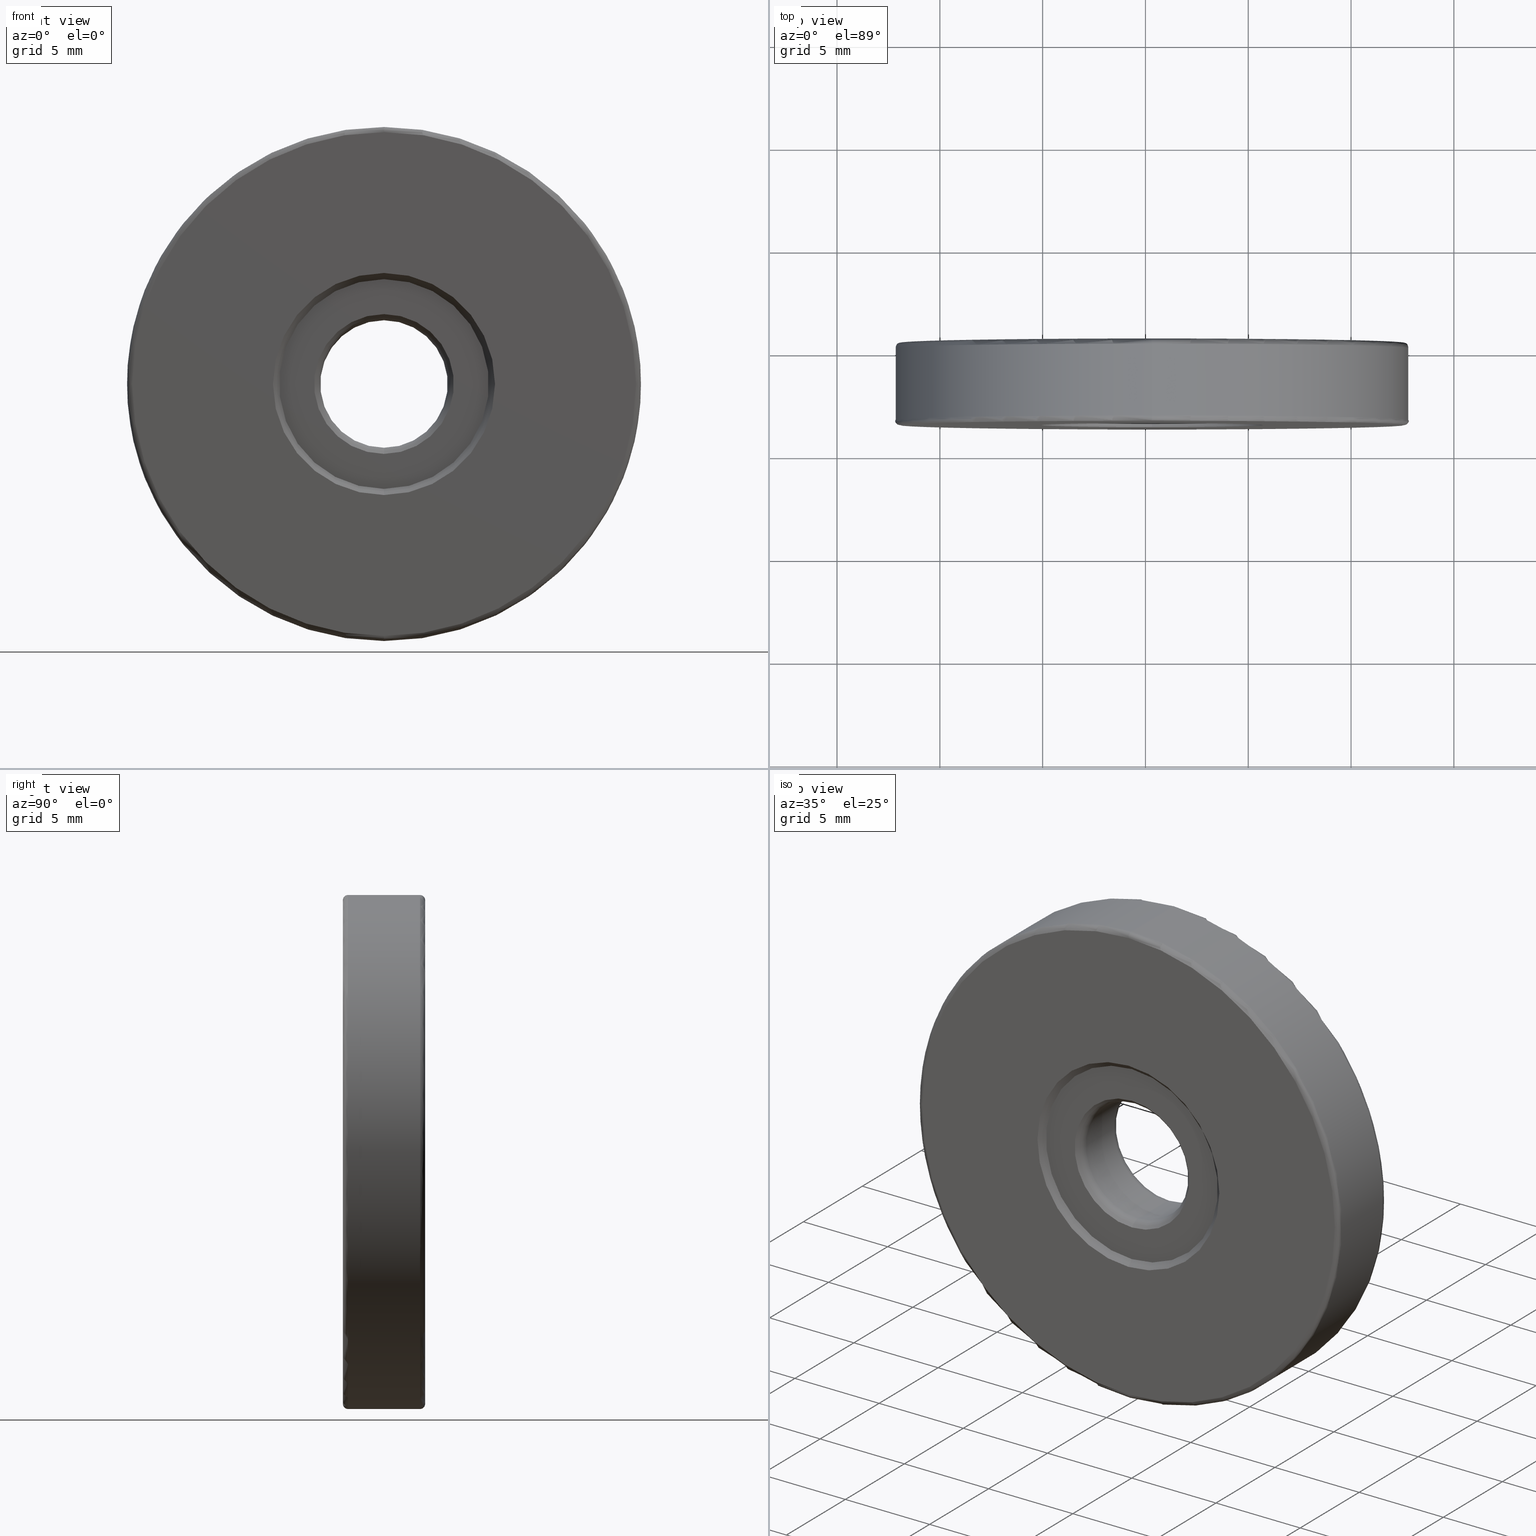
[diagram: canonical four-view strip — front | top / right | iso, engineering-drawing reading convention]
A machine part, canonical four-view strip (front | top / right | iso — engineering-drawing reading convention). The complete STEP part file that produces these views, byte-faithful:
ISO-10303-21;
HEADER;
FILE_DESCRIPTION (( 'STEP AP203' ),
    '1' );
FILE_NAME ('1.4.2.104_ZGH-25-DK4.STEP',
    '2022-04-15T03:00:10',
    ( '' ),
    ( '' ),
    'SwSTEP 2.0',
    'SolidWorks 2021',
    '' );
FILE_SCHEMA (( 'CONFIG_CONTROL_DESIGN' ));
ENDSEC;

DATA;
#1 = CIRCLE ( 'NONE', #274, 5.400000000000002132 ) ;
#2 = CIRCLE ( 'NONE', #41, 5.100000000000000533 ) ;
#3 = AXIS2_PLACEMENT_3D ( 'NONE', #402, #7, #336 ) ;
#4 = VERTEX_POINT ( 'NONE', #6 ) ;
#5 = PLANE ( 'NONE',  #410 ) ;
#6 = CARTESIAN_POINT ( 'NONE',  ( -4.682026255059964726, -3.594975976998274980, 37.25000000000000711 ) ) ;
#7 = DIRECTION ( 'NONE',  ( 0.0000000000000000000, 1.000000000000000000, 0.0000000000000000000 ) ) ;
#8 = EDGE_CURVE ( 'NONE', #578, #601, #228, .T. ) ;
#9 = CARTESIAN_POINT ( 'NONE',  ( -4.682026255059964726, 0.4050240230017252419, 25.00000000000000000 ) ) ;
#10 = FACE_OUTER_BOUND ( 'NONE', #338, .T. ) ;
#11 = ORIENTED_EDGE ( 'NONE', *, *, #70, .F. ) ;
#12 = DIRECTION ( 'NONE',  ( 0.0000000000000000000, 0.0000000000000000000, -1.000000000000000000 ) ) ;
#13 = PERSON_AND_ORGANIZATION ( #32, #595 ) ;
#14 = CARTESIAN_POINT ( 'NONE',  ( -4.682026255059964726, -0.4020827581848183119, 25.00000000000000000 ) ) ;
#15 = CARTESIAN_POINT ( 'NONE',  ( -4.682026255059964726, -3.594975976998274980, 28.10000000000000142 ) ) ;
#16 = AXIS2_PLACEMENT_3D ( 'NONE', #600, #649, #147 ) ;
#17 = EDGE_CURVE ( 'NONE', #108, #584, #293, .T. ) ;
#18 = DIRECTION ( 'NONE',  ( -1.000000000000000000, 0.0000000000000000000, 0.0000000000000000000 ) ) ;
#19 = APPROVAL_DATE_TIME ( #136, #110 ) ;
#20 = EDGE_CURVE ( 'NONE', #216, #645, #306, .T. ) ;
#21 = DIRECTION ( 'NONE',  ( 1.000000000000000000, -0.0000000000000000000, 1.224646799147353207E-16 ) ) ;
#22 = EDGE_LOOP ( 'NONE', ( #284, #236, #704, #205 ) ) ;
#23 = DIRECTION ( 'NONE',  ( 0.0000000000000000000, 0.0000000000000000000, 1.000000000000000000 ) ) ;
#24 = MECHANICAL_CONTEXT ( 'NONE', #218, 'mechanical' ) ;
#25 = ORIENTED_EDGE ( 'NONE', *, *, #378, .T. ) ;
#26 = DATE_TIME_ROLE ( 'classification_date' ) ;
#27 = AXIS2_PLACEMENT_3D ( 'NONE', #630, #421, #303 ) ;
#28 = SECURITY_CLASSIFICATION ( '', '', #181 ) ;
#29 = EDGE_LOOP ( 'NONE', ( #363, #197, #62, #273 ) ) ;
#30 = FACE_OUTER_BOUND ( 'NONE', #148, .T. ) ;
#31 = TOROIDAL_SURFACE ( 'NONE', #220, 3.600000000000000089, 0.5000000000000000000 ) ;
#32 = PERSON ( 'δָ��', 'δָ��', 'δָ��', ('δָ��'), ('δָ��'), ('δָ��') ) ;
#33 = EDGE_LOOP ( 'NONE', ( #317, #524, #183, #647 ) ) ;
#34 = ADVANCED_FACE ( 'NONE', ( #124 ), #641, .F. ) ;
#35 = CARTESIAN_POINT ( 'NONE',  ( -4.682026255059964726, 0.1550240230017252141, 37.50000000000000711 ) ) ;
#36 = ORIENTED_EDGE ( 'NONE', *, *, #144, .T. ) ;
#37 = CARTESIAN_POINT ( 'NONE',  ( -4.682026255059964726, -3.344975976998274980, 25.00000000000000000 ) ) ;
#38 = AXIS2_PLACEMENT_3D ( 'NONE', #356, #194, #23 ) ;
#39 = ORIENTED_EDGE ( 'NONE', *, *, #327, .F. ) ;
#40 = CARTESIAN_POINT ( 'NONE',  ( -4.682026255059962949, -3.344975976998274980, 12.50000000000000000 ) ) ;
#41 = AXIS2_PLACEMENT_3D ( 'NONE', #203, #251, #313 ) ;
#42 = CIRCLE ( 'NONE', #526, 5.100000000000000533 ) ;
#43 = ORIENTED_EDGE ( 'NONE', *, *, #141, .T. ) ;
#44 = CARTESIAN_POINT ( 'NONE',  ( -4.682026255059963837, -3.294975976998275158, 30.10000000000000142 ) ) ;
#45 = ORIENTED_EDGE ( 'NONE', *, *, #162, .T. ) ;
#46 = CARTESIAN_POINT ( 'NONE',  ( -4.682026255059964726, 0.4050240230017252419, 25.00000000000000000 ) ) ;
#47 = CYLINDRICAL_SURFACE ( 'NONE', #157, 3.099999999999998757 ) ;
#48 = CIRCLE ( 'NONE', #701, 3.246446609406726580 ) ;
#49 = DIRECTION ( 'NONE',  ( -0.0000000000000000000, -1.000000000000000000, -0.0000000000000000000 ) ) ;
#50 = VERTEX_POINT ( 'NONE', #674 ) ;
#51 =( LENGTH_UNIT ( ) NAMED_UNIT ( * ) SI_UNIT ( .MILLI., .METRE. ) );
#52 = VERTEX_POINT ( 'NONE', #512 ) ;
#53 = CYLINDRICAL_SURFACE ( 'NONE', #597, 12.50000000000000000 ) ;
#54 = ORIENTED_EDGE ( 'NONE', *, *, #56, .F. ) ;
#55 = DIRECTION ( 'NONE',  ( 0.0000000000000000000, 0.0000000000000000000, 1.000000000000000000 ) ) ;
#56 = EDGE_CURVE ( 'NONE', #639, #108, #620, .T. ) ;
#57 = AXIS2_PLACEMENT_3D ( 'NONE', #394, #18, #285 ) ;
#58 = CIRCLE ( 'NONE', #329, 3.399999999999996803 ) ;
#59 = PLANE ( 'NONE',  #496 ) ;
#60 = CIRCLE ( 'NONE', #152, 0.5000000000000004441 ) ;
#61 = DIRECTION ( 'NONE',  ( 0.0000000000000000000, 0.0000000000000000000, 1.000000000000000000 ) ) ;
#62 = ORIENTED_EDGE ( 'NONE', *, *, #111, .T. ) ;
#63 = FACE_OUTER_BOUND ( 'NONE', #436, .T. ) ;
#64 = DIRECTION ( 'NONE',  ( 0.0000000000000000000, 0.0000000000000000000, -1.000000000000000000 ) ) ;
#65 = ORIENTED_EDGE ( 'NONE', *, *, #706, .F. ) ;
#66 = CARTESIAN_POINT ( 'NONE',  ( -4.682026255059964726, -3.344975976998274980, 25.00000000000000000 ) ) ;
#67 = ADVANCED_FACE ( 'NONE', ( #700 ), #31, .T. ) ;
#68 = CARTESIAN_POINT ( 'NONE',  ( -4.682026255059964726, -3.294975976998275158, 28.40000000000000568 ) ) ;
#69 = DIRECTION ( 'NONE',  ( 0.0000000000000000000, 1.000000000000000000, 0.0000000000000000000 ) ) ;
#70 = EDGE_CURVE ( 'NONE', #634, #584, #85, .T. ) ;
#71 = FACE_OUTER_BOUND ( 'NONE', #92, .T. ) ;
#72 = AXIS2_PLACEMENT_3D ( 'NONE', #215, #201, #657 ) ;
#73 = CIRCLE ( 'NONE', #495, 3.399999999999996803 ) ;
#74 = APPROVAL_ROLE ( '' ) ;
#75 = EDGE_CURVE ( 'NONE', #4, #50, #596, .T. ) ;
#76 = DIRECTION ( 'NONE',  ( -0.0000000000000000000, -1.000000000000000000, -0.0000000000000000000 ) ) ;
#77 = DIRECTION ( 'NONE',  ( 0.0000000000000000000, 0.0000000000000000000, -1.000000000000000000 ) ) ;
#78 = ORIENTED_EDGE ( 'NONE', *, *, #75, .T. ) ;
#79 = DIRECTION ( 'NONE',  ( 0.0000000000000000000, 0.0000000000000000000, 1.000000000000000000 ) ) ;
#80 = PERSON_AND_ORGANIZATION_ROLE ( 'design_owner' ) ;
#81 = DIRECTION ( 'NONE',  ( 0.0000000000000000000, 1.000000000000000000, 0.0000000000000000000 ) ) ;
#82 = APPLICATION_PROTOCOL_DEFINITION ( 'international standard', 'config_control_design', 1994, #662 ) ;
#83 = VECTOR ( 'NONE', #396, 1000.000000000000000 ) ;
#84 = EDGE_LOOP ( 'NONE', ( #209, #335, #139, #513 ) ) ;
#85 = CIRCLE ( 'NONE', #527, 3.246446609406726580 ) ;
#86 = EDGE_CURVE ( 'NONE', #578, #52, #244, .T. ) ;
#87 = ORIENTED_EDGE ( 'NONE', *, *, #252, .F. ) ;
#88 = DIRECTION ( 'NONE',  ( 0.0000000000000000000, 0.0000000000000000000, 1.000000000000000000 ) ) ;
#89 = DIRECTION ( 'NONE',  ( 0.0000000000000000000, 0.0000000000000000000, 1.000000000000000000 ) ) ;
#90 = CARTESIAN_POINT ( 'NONE',  ( -4.682026255059964726, -0.04852936759154320712, 21.75355339059327520 ) ) ;
#91 = CC_DESIGN_DATE_AND_TIME_ASSIGNMENT ( #458, #186, ( #360 ) ) ;
#92 = EDGE_LOOP ( 'NONE', ( #43, #412, #95, #142 ) ) ;
#93 = DIRECTION ( 'NONE',  ( 0.0000000000000000000, 0.0000000000000000000, 1.000000000000000000 ) ) ;
#94 = AXIS2_PLACEMENT_3D ( 'NONE', #14, #450, #673 ) ;
#95 = ORIENTED_EDGE ( 'NONE', *, *, #498, .F. ) ;
#96 = CIRCLE ( 'NONE', #275, 3.400000000000003908 ) ;
#97 = DIRECTION ( 'NONE',  ( 8.659560562354957510E-17, 0.7071067811865454633, -0.7071067811865495711 ) ) ;
#98 = CIRCLE ( 'NONE', #221, 5.400000000000002132 ) ;
#99 = EDGE_LOOP ( 'NONE', ( #87, #445, #113, #65 ) ) ;
#100 = FACE_BOUND ( 'NONE', #431, .T. ) ;
#101 = DIRECTION ( 'NONE',  ( -0.0000000000000000000, -1.000000000000000000, -0.0000000000000000000 ) ) ;
#102 = EDGE_CURVE ( 'NONE', #634, #592, #483, .T. ) ;
#103 = FACE_OUTER_BOUND ( 'NONE', #717, .T. ) ;
#104 = DIRECTION ( 'NONE',  ( 0.0000000000000000000, 0.0000000000000000000, 1.000000000000000000 ) ) ;
#105 = CARTESIAN_POINT ( 'NONE',  ( -4.682026255059963837, -0.4020827581848183119, 28.60000000000000142 ) ) ;
#106 = EDGE_CURVE ( 'NONE', #711, #639, #573, .T. ) ;
#107 = CONICAL_SURFACE ( 'NONE', #16, 5.400000000000002132, 0.7853981633974439491 ) ;
#108 = VERTEX_POINT ( 'NONE', #476 ) ;
#109 = ORIENTED_EDGE ( 'NONE', *, *, #343, .T. ) ;
#110 = APPROVAL ( #449, 'δָ��' ) ;
#111 = EDGE_CURVE ( 'NONE', #604, #697, #316, .T. ) ;
#112 = FACE_OUTER_BOUND ( 'NONE', #670, .T. ) ;
#113 = ORIENTED_EDGE ( 'NONE', *, *, #622, .T. ) ;
#114 = CARTESIAN_POINT ( 'NONE',  ( -4.682026255059964726, 0.1550240230017252141, 25.00000000000000000 ) ) ;
#115 = CONICAL_SURFACE ( 'NONE', #614, 3.400000000000003908, 0.7853981633974490562 ) ;
#116 = CC_DESIGN_APPROVAL ( #295, ( #28 ) ) ;
#117 = LINE ( 'NONE', #505, #83 ) ;
#118 = CARTESIAN_POINT ( 'NONE',  ( -4.682026255059963837, 0.1050240230017253085, 19.90000000000000213 ) ) ;
#119 = ORIENTED_EDGE ( 'NONE', *, *, #585, .T. ) ;
#120 = CARTESIAN_POINT ( 'NONE',  ( -4.682026255059964726, -3.294975976998275158, 21.59999999999999787 ) ) ;
#121 = FACE_OUTER_BOUND ( 'NONE', #659, .T. ) ;
#122 = ADVANCED_FACE ( 'NONE', ( #590 ), #107, .F. ) ;
#123 = DIRECTION ( 'NONE',  ( 1.000000000000000000, -0.0000000000000000000, 1.224646799147353207E-16 ) ) ;
#124 = FACE_OUTER_BOUND ( 'NONE', #84, .T. ) ;
#125 = DIRECTION ( 'NONE',  ( 0.0000000000000000000, 0.0000000000000000000, -1.000000000000000000 ) ) ;
#126 = DIRECTION ( 'NONE',  ( 0.0000000000000000000, 0.0000000000000000000, 1.000000000000000000 ) ) ;
#127 = CARTESIAN_POINT ( 'NONE',  ( -4.682026255059964726, 0.1050240230017322474, 30.10000000000000142 ) ) ;
#128 = VERTEX_POINT ( 'NONE', #40 ) ;
#129 = CIRCLE ( 'NONE', #369, 3.099999999999998757 ) ;
#130 = DATE_AND_TIME ( #625, #428 ) ;
#131 = APPROVAL_PERSON_ORGANIZATION ( #13, #110, #570 ) ;
#132 = DIRECTION ( 'NONE',  ( 0.0000000000000000000, 0.0000000000000000000, 1.000000000000000000 ) ) ;
#133 = AXIS2_PLACEMENT_3D ( 'NONE', #405, #21, #502 ) ;
#134 = CONICAL_SURFACE ( 'NONE', #3, 5.100000000000000533, 0.7853981633974526089 ) ;
#135 = DIRECTION ( 'NONE',  ( 0.0000000000000000000, 0.0000000000000000000, 1.000000000000000000 ) ) ;
#136 = DATE_AND_TIME ( #516, #699 ) ;
#137 = ADVANCED_FACE ( 'NONE', ( #103 ), #515, .T. ) ;
#138 = COORDINATED_UNIVERSAL_TIME_OFFSET ( 8, 0, .AHEAD. ) ;
#139 = ORIENTED_EDGE ( 'NONE', *, *, #20, .F. ) ;
#140 = OPEN_SHELL ( 'NONE', ( #467, #658, #34, #286, #403, #231, #311, #191, #122, #425, #137, #591, #602, #213, #442, #67, #161, #249, #159, #682, #370, #599, #155, #479 ) ) ;
#141 = EDGE_CURVE ( 'NONE', #584, #634, #48, .T. ) ;
#142 = ORIENTED_EDGE ( 'NONE', *, *, #653, .F. ) ;
#143 = DIRECTION ( 'NONE',  ( 0.0000000000000000000, 1.000000000000000000, 0.0000000000000000000 ) ) ;
#144 = EDGE_CURVE ( 'NONE', #227, #250, #2, .T. ) ;
#145 = DIRECTION ( 'NONE',  ( 0.0000000000000000000, 1.000000000000000000, 0.0000000000000000000 ) ) ;
#146 = ORIENTED_EDGE ( 'NONE', *, *, #588, .F. ) ;
#147 = DIRECTION ( 'NONE',  ( 0.0000000000000000000, 0.0000000000000000000, -1.000000000000000000 ) ) ;
#148 = EDGE_LOOP ( 'NONE', ( #165, #541 ) ) ;
#149 = VECTOR ( 'NONE', #433, 1000.000000000000000 ) ;
#150 = CARTESIAN_POINT ( 'NONE',  ( -4.682026255059964726, -3.594975976998274980, 25.00000000000000000 ) ) ;
#151 = AXIS2_PLACEMENT_3D ( 'NONE', #571, #397, #132 ) ;
#152 = AXIS2_PLACEMENT_3D ( 'NONE', #529, #461, #79 ) ;
#153 = ORIENTED_EDGE ( 'NONE', *, *, #20, .T. ) ;
#154 = DIRECTION ( 'NONE',  ( -1.000000000000000000, 0.0000000000000000000, 0.0000000000000000000 ) ) ;
#155 = ADVANCED_FACE ( 'NONE', ( #487 ), #362, .T. ) ;
#156 = ORIENTED_EDGE ( 'NONE', *, *, #270, .T. ) ;
#157 = AXIS2_PLACEMENT_3D ( 'NONE', #150, #593, #375 ) ;
#158 = AXIS2_PLACEMENT_3D ( 'NONE', #459, #387, #558 ) ;
#159 = ADVANCED_FACE ( 'NONE', ( #430 ), #710, .F. ) ;
#160 = VERTEX_POINT ( 'NONE', #544 ) ;
#161 = ADVANCED_FACE ( 'NONE', ( #702 ), #47, .F. ) ;
#162 = EDGE_CURVE ( 'NONE', #604, #50, #164, .T. ) ;
#163 = DIRECTION ( 'NONE',  ( 0.0000000000000000000, 1.000000000000000000, 0.0000000000000000000 ) ) ;
#164 = LINE ( 'NONE', #320, #671 ) ;
#165 = ORIENTED_EDGE ( 'NONE', *, *, #327, .T. ) ;
#166 = DIRECTION ( 'NONE',  ( -0.0000000000000000000, -1.000000000000000000, -0.0000000000000000000 ) ) ;
#167 = DIRECTION ( 'NONE',  ( 0.0000000000000000000, -0.0000000000000000000, 1.000000000000000000 ) ) ;
#168 = LINE ( 'NONE', #563, #560 ) ;
#169 = ORIENTED_EDGE ( 'NONE', *, *, #577, .T. ) ;
#170 = DIRECTION ( 'NONE',  ( 0.0000000000000000000, 1.000000000000000000, 0.0000000000000000000 ) ) ;
#171 = CC_DESIGN_SECURITY_CLASSIFICATION ( #28, ( #557 ) ) ;
#172 = DIRECTION ( 'NONE',  ( 0.0000000000000000000, 0.0000000000000000000, -1.000000000000000000 ) ) ;
#173 = DIRECTION ( 'NONE',  ( 8.659560562354969836E-17, 0.7071067811865444641, -0.7071067811865505703 ) ) ;
#174 = ORIENTED_EDGE ( 'NONE', *, *, #17, .F. ) ;
#175 = CARTESIAN_POINT ( 'NONE',  ( -4.682026255059964726, 0.4050240230017252419, 25.00000000000000000 ) ) ;
#176 = APPROVAL_DATE_TIME ( #528, #225 ) ;
#177 = CARTESIAN_POINT ( 'NONE',  ( -4.682026255059964726, -0.4020827581848183119, 25.00000000000000000 ) ) ;
#178 = CARTESIAN_POINT ( 'NONE',  ( -4.682026255059964726, 0.1050240230017322474, 25.00000000000000000 ) ) ;
#179 = LINE ( 'NONE', #127, #535 ) ;
#180 = VERTEX_POINT ( 'NONE', #44 ) ;
#181 = SECURITY_CLASSIFICATION_LEVEL ( 'unclassified' ) ;
#182 = DIRECTION ( 'NONE',  ( -0.0000000000000000000, -1.000000000000000000, -0.0000000000000000000 ) ) ;
#183 = ORIENTED_EDGE ( 'NONE', *, *, #8, .T. ) ;
#184 = CARTESIAN_POINT ( 'NONE',  ( -4.682026255059964726, -2.787869195811723877, 25.00000000000000000 ) ) ;
#185 = TOROIDAL_SURFACE ( 'NONE', #374, 3.600000000000000089, 0.5000000000000000000 ) ;
#186 = DATE_TIME_ROLE ( 'creation_date' ) ;
#187 = AXIS2_PLACEMENT_3D ( 'NONE', #562, #278, #714 ) ;
#188 = AXIS2_PLACEMENT_3D ( 'NONE', #666, #182, #517 ) ;
#189 = CIRCLE ( 'NONE', #57, 0.5000000000000004441 ) ;
#190 = ORIENTED_EDGE ( 'NONE', *, *, #498, .T. ) ;
#191 = ADVANCED_FACE ( 'NONE', ( #587 ), #477, .F. ) ;
#192 = CARTESIAN_POINT ( 'NONE',  ( -4.682026255059962949, -3.594975976998274980, 12.75000000000000178 ) ) ;
#193 = ORIENTED_EDGE ( 'NONE', *, *, #238, .T. ) ;
#194 = DIRECTION ( 'NONE',  ( -0.0000000000000000000, -1.000000000000000000, -0.0000000000000000000 ) ) ;
#195 = APPROVAL_DATE_TIME ( #695, #295 ) ;
#196 = AXIS2_PLACEMENT_3D ( 'NONE', #9, #49, #501 ) ;
#197 = ORIENTED_EDGE ( 'NONE', *, *, #551, .F. ) ;
#198 = DIRECTION ( 'NONE',  ( 0.0000000000000000000, 1.000000000000000000, 0.0000000000000000000 ) ) ;
#199 = AXIS2_PLACEMENT_3D ( 'NONE', #451, #346, #568 ) ;
#200 = EDGE_CURVE ( 'NONE', #497, #663, #437, .T. ) ;
#201 = DIRECTION ( 'NONE',  ( 0.0000000000000000000, 1.000000000000000000, 0.0000000000000000000 ) ) ;
#202 = ORIENTED_EDGE ( 'NONE', *, *, #323, .F. ) ;
#203 = CARTESIAN_POINT ( 'NONE',  ( -4.682026255059964726, 0.1050240230017253085, 25.00000000000000000 ) ) ;
#204 = CARTESIAN_POINT ( 'NONE',  ( -4.682026255059964726, 0.1050240230017253085, 25.00000000000000000 ) ) ;
#205 = ORIENTED_EDGE ( 'NONE', *, *, #111, .F. ) ;
#206 = CARTESIAN_POINT ( 'NONE',  ( -4.682026255059964726, -2.787869195811723877, 25.00000000000000000 ) ) ;
#207 = DIRECTION ( 'NONE',  ( -0.0000000000000000000, 1.000000000000000000, -0.0000000000000000000 ) ) ;
#208 = AXIS2_PLACEMENT_3D ( 'NONE', #184, #635, #135 ) ;
#209 = ORIENTED_EDGE ( 'NONE', *, *, #144, .F. ) ;
#210 = CC_DESIGN_APPROVAL ( #110, ( #557 ) ) ;
#211 = DIRECTION ( 'NONE',  ( 0.0000000000000000000, 1.000000000000000000, 0.0000000000000000000 ) ) ;
#212 = CONICAL_SURFACE ( 'NONE', #618, 3.099999999999998757, 0.7853981633974511656 ) ;
#213 = ADVANCED_FACE ( 'NONE', ( #624, #112 ), #5, .T. ) ;
#214 = ORIENTED_EDGE ( 'NONE', *, *, #569, .F. ) ;
#215 = CARTESIAN_POINT ( 'NONE',  ( -4.682026255059964726, -0.1949759769982698510, 25.00000000000000000 ) ) ;
#216 = VERTEX_POINT ( 'NONE', #507 ) ;
#217 = ORIENTED_EDGE ( 'NONE', *, *, #581, .T. ) ;
#218 = APPLICATION_CONTEXT ( 'configuration controlled 3d designs of mechanical parts and assemblies' ) ;
#219 = AXIS2_PLACEMENT_3D ( 'NONE', #309, #245, #531 ) ;
#220 = AXIS2_PLACEMENT_3D ( 'NONE', #206, #143, #259 ) ;
#221 = AXIS2_PLACEMENT_3D ( 'NONE', #272, #198, #586 ) ;
#222 = ORIENTED_EDGE ( 'NONE', *, *, #365, .T. ) ;
#223 = DIRECTION ( 'NONE',  ( 0.0000000000000000000, 1.000000000000000000, 0.0000000000000000000 ) ) ;
#224 = CARTESIAN_POINT ( 'NONE',  ( -4.682026255059963837, 0.4050240230017252419, 19.60000000000000497 ) ) ;
#225 = APPROVAL ( #519, 'δָ��' ) ;
#226 = CARTESIAN_POINT ( 'NONE',  ( -4.682026255059964726, -3.294975976998275158, 25.00000000000000000 ) ) ;
#227 = VERTEX_POINT ( 'NONE', #118 ) ;
#228 = LINE ( 'NONE', #447, #607 ) ;
#229 = CARTESIAN_POINT ( 'NONE',  ( -4.682026255059964726, -3.294975976998275158, 25.00000000000000000 ) ) ;
#230 = AXIS2_PLACEMENT_3D ( 'NONE', #705, #154, #93 ) ;
#231 = ADVANCED_FACE ( 'NONE', ( #10 ), #444, .F. ) ;
#232 = CARTESIAN_POINT ( 'NONE',  ( -4.682026255059964726, -0.4020827581848183119, 21.90000000000000213 ) ) ;
#233 = DIRECTION ( 'NONE',  ( -0.0000000000000000000, 1.000000000000000000, -0.0000000000000000000 ) ) ;
#234 = PERSON_AND_ORGANIZATION_ROLE ( 'creator' ) ;
#235 = DIRECTION ( 'NONE',  ( 8.659560562354895880E-17, -0.7071067811865505703, 0.7071067811865444641 ) ) ;
#236 = ORIENTED_EDGE ( 'NONE', *, *, #200, .T. ) ;
#237 = DIRECTION ( 'NONE',  ( 0.0000000000000000000, 1.000000000000000000, 0.0000000000000000000 ) ) ;
#238 = EDGE_CURVE ( 'NONE', #180, #553, #341, .T. ) ;
#239 = CALENDAR_DATE ( 2022, 15, 4 ) ;
#240 = FACE_OUTER_BOUND ( 'NONE', #687, .T. ) ;
#241 = DIRECTION ( 'NONE',  ( 0.0000000000000000000, 0.0000000000000000000, 1.000000000000000000 ) ) ;
#242 = APPROVAL_STATUS ( 'not_yet_approved' ) ;
#243 =( GEOMETRIC_REPRESENTATION_CONTEXT ( 3 ) GLOBAL_UNCERTAINTY_ASSIGNED_CONTEXT ( ( #552 ) ) GLOBAL_UNIT_ASSIGNED_CONTEXT ( ( #51, #638, #415 ) ) REPRESENTATION_CONTEXT ( 'NONE', 'WORKASPACE' ) );
#244 = CIRCLE ( 'NONE', #372, 3.246446609406726580 ) ;
#245 = DIRECTION ( 'NONE',  ( -0.0000000000000000000, 1.000000000000000000, -0.0000000000000000000 ) ) ;
#246 = CALENDAR_DATE ( 2022, 15, 4 ) ;
#247 = VERTEX_POINT ( 'NONE', #68 ) ;
#248 = DIRECTION ( 'NONE',  ( 0.0000000000000000000, -0.7071067811865505703, -0.7071067811865444641 ) ) ;
#249 = ADVANCED_FACE ( 'NONE', ( #679 ), #536, .T. ) ;
#250 = VERTEX_POINT ( 'NONE', #355 ) ;
#251 = DIRECTION ( 'NONE',  ( 0.0000000000000000000, 1.000000000000000000, 0.0000000000000000000 ) ) ;
#252 = EDGE_CURVE ( 'NONE', #227, #645, #350, .T. ) ;
#253 = AXIS2_PLACEMENT_3D ( 'NONE', #310, #532, #422 ) ;
#254 = ORIENTED_EDGE ( 'NONE', *, *, #471, .T. ) ;
#255 = PLANE ( 'NONE',  #351 ) ;
#256 = CIRCLE ( 'NONE', #466, 12.50000000000000355 ) ;
#257 = DIRECTION ( 'NONE',  ( -0.0000000000000000000, -1.000000000000000000, -0.0000000000000000000 ) ) ;
#258 = ORIENTED_EDGE ( 'NONE', *, *, #106, .T. ) ;
#259 = DIRECTION ( 'NONE',  ( 0.0000000000000000000, 0.0000000000000000000, 1.000000000000000000 ) ) ;
#260 = EDGE_CURVE ( 'NONE', #663, #697, #689, .T. ) ;
#261 = DIRECTION ( 'NONE',  ( 0.0000000000000000000, 1.000000000000000000, 0.0000000000000000000 ) ) ;
#262 = CARTESIAN_POINT ( 'NONE',  ( -4.682026255059964726, -3.141422586404997830, 25.00000000000000000 ) ) ;
#263 = EDGE_CURVE ( 'NONE', #52, #247, #168, .T. ) ;
#264 = LOCAL_TIME ( 11, 0, 10.00000000000000000, #138 ) ;
#265 = EDGE_LOOP ( 'NONE', ( #636, #379 ) ) ;
#266 = CARTESIAN_POINT ( 'NONE',  ( -4.682026255059964726, -0.04852936759154320712, 25.00000000000000000 ) ) ;
#267 = AXIS2_PLACEMENT_3D ( 'NONE', #37, #211, #89 ) ;
#268 = CARTESIAN_POINT ( 'NONE',  ( -4.682026255059964726, 0.1050240230017253085, 25.00000000000000000 ) ) ;
#269 = ORIENTED_EDGE ( 'NONE', *, *, #585, .F. ) ;
#270 = EDGE_CURVE ( 'NONE', #497, #128, #619, .T. ) ;
#271 = EDGE_LOOP ( 'NONE', ( #214, #493, #146, #530 ) ) ;
#272 = CARTESIAN_POINT ( 'NONE',  ( -4.682026255059964726, -3.594975976998274980, 25.00000000000000000 ) ) ;
#273 = ORIENTED_EDGE ( 'NONE', *, *, #260, .F. ) ;
#274 = AXIS2_PLACEMENT_3D ( 'NONE', #419, #145, #481 ) ;
#275 = AXIS2_PLACEMENT_3D ( 'NONE', #642, #207, #328 ) ;
#276 = VECTOR ( 'NONE', #173, 1000.000000000000000 ) ;
#277 = CIRCLE ( 'NONE', #219, 3.400000000000003908 ) ;
#278 = DIRECTION ( 'NONE',  ( 0.0000000000000000000, 1.000000000000000000, 0.0000000000000000000 ) ) ;
#279 = CARTESIAN_POINT ( 'NONE',  ( -4.682026255059963837, -2.787869195811723877, 21.40000000000000213 ) ) ;
#280 = VERTEX_POINT ( 'NONE', #232 ) ;
#281 = DIRECTION ( 'NONE',  ( -0.0000000000000000000, -1.000000000000000000, -0.0000000000000000000 ) ) ;
#282 = DIRECTION ( 'NONE',  ( 0.0000000000000000000, 0.0000000000000000000, 1.000000000000000000 ) ) ;
#283 = CARTESIAN_POINT ( 'NONE',  ( -4.682026255059964726, -3.594975976998274980, 25.00000000000000000 ) ) ;
#284 = ORIENTED_EDGE ( 'NONE', *, *, #457, .F. ) ;
#285 = DIRECTION ( 'NONE',  ( 0.0000000000000000000, 0.0000000000000000000, 1.000000000000000000 ) ) ;
#286 = ADVANCED_FACE ( 'NONE', ( #71 ), #212, .F. ) ;
#287 = PERSON_AND_ORGANIZATION ( #32, #595 ) ;
#288 = DIRECTION ( 'NONE',  ( 0.0000000000000000000, -1.000000000000000000, 0.0000000000000000000 ) ) ;
#289 = DIRECTION ( 'NONE',  ( 0.0000000000000000000, 0.0000000000000000000, 1.000000000000000000 ) ) ;
#290 = CIRCLE ( 'NONE', #640, 0.2500000000000002220 ) ;
#291 = AXIS2_PLACEMENT_3D ( 'NONE', #426, #257, #542 ) ;
#292 = COORDINATED_UNIVERSAL_TIME_OFFSET ( 8, 0, .AHEAD. ) ;
#293 = CIRCLE ( 'NONE', #546, 0.5000000000000004441 ) ;
#294 = CARTESIAN_POINT ( 'NONE',  ( -4.682026255059964726, -3.594975976998274980, 25.00000000000000000 ) ) ;
#295 = APPROVAL ( #242, 'δָ��' ) ;
#296 = ORIENTED_EDGE ( 'NONE', *, *, #260, .T. ) ;
#297 = CARTESIAN_POINT ( 'NONE',  ( -4.682026255059964726, -3.594975976998274980, 25.00000000000000000 ) ) ;
#298 = COORDINATED_UNIVERSAL_TIME_OFFSET ( 8, 0, .AHEAD. ) ;
#299 = DIRECTION ( 'NONE',  ( 0.0000000000000000000, 1.000000000000000000, 0.0000000000000000000 ) ) ;
#300 = ORIENTED_EDGE ( 'NONE', *, *, #343, .F. ) ;
#301 = CARTESIAN_POINT ( 'NONE',  ( -4.682026255059963837, -0.04852936759154320712, 28.24644660940672836 ) ) ;
#302 = ORIENTED_EDGE ( 'NONE', *, *, #17, .T. ) ;
#303 = DIRECTION ( 'NONE',  ( 0.0000000000000000000, 0.0000000000000000000, -1.000000000000000000 ) ) ;
#304 = CIRCLE ( 'NONE', #690, 5.100000000000000533 ) ;
#305 = PERSON_AND_ORGANIZATION ( #32, #595 ) ;
#306 = CIRCLE ( 'NONE', #199, 5.399999999999995026 ) ;
#307 = EDGE_LOOP ( 'NONE', ( #388, #193, #376, #589 ) ) ;
#308 = ORIENTED_EDGE ( 'NONE', *, *, #581, .F. ) ;
#309 = CARTESIAN_POINT ( 'NONE',  ( -4.682026255059964726, -3.294975976998275158, 25.00000000000000000 ) ) ;
#310 = CARTESIAN_POINT ( 'NONE',  ( -4.682026255059964726, -3.294975976998275158, 25.00000000000000000 ) ) ;
#311 = ADVANCED_FACE ( 'NONE', ( #240 ), #395, .T. ) ;
#312 = EDGE_LOOP ( 'NONE', ( #608, #296 ) ) ;
#313 = DIRECTION ( 'NONE',  ( 0.0000000000000000000, 0.0000000000000000000, 1.000000000000000000 ) ) ;
#314 = AXIS2_PLACEMENT_3D ( 'NONE', #609, #468, #77 ) ;
#315 = AXIS2_PLACEMENT_3D ( 'NONE', #548, #163, #282 ) ;
#316 = CIRCLE ( 'NONE', #230, 0.2500000000000002220 ) ;
#317 = ORIENTED_EDGE ( 'NONE', *, *, #263, .F. ) ;
#318 = CIRCLE ( 'NONE', #438, 0.5000000000000004441 ) ;
#319 = EDGE_CURVE ( 'NONE', #52, #578, #408, .T. ) ;
#320 = CARTESIAN_POINT ( 'NONE',  ( -4.682026255059962949, 0.4050240230017252419, 37.50000000000000711 ) ) ;
#321 = DIRECTION ( 'NONE',  ( -0.0000000000000000000, -1.000000000000000000, -0.0000000000000000000 ) ) ;
#322 = ORIENTED_EDGE ( 'NONE', *, *, #457, .T. ) ;
#323 = EDGE_CURVE ( 'NONE', #711, #578, #318, .T. ) ;
#324 = DIRECTION ( 'NONE',  ( 0.0000000000000000000, 0.0000000000000000000, -1.000000000000000000 ) ) ;
#325 = MANIFOLD_SURFACE_SHAPE_REPRESENTATION ( '1.4.2.104_ZGH-25-DK4', ( #694, #463 ), #243 ) ;
#326 = ORIENTED_EDGE ( 'NONE', *, *, #8, .F. ) ;
#327 = EDGE_CURVE ( 'NONE', #4, #564, #574, .T. ) ;
#328 = DIRECTION ( 'NONE',  ( 0.0000000000000000000, 0.0000000000000000000, -1.000000000000000000 ) ) ;
#329 = AXIS2_PLACEMENT_3D ( 'NONE', #204, #321, #104 ) ;
#330 = DIRECTION ( 'NONE',  ( 1.000000000000000000, 0.0000000000000000000, -1.224646799147353207E-16 ) ) ;
#331 = AXIS2_PLACEMENT_3D ( 'NONE', #366, #655, #603 ) ;
#332 = CARTESIAN_POINT ( 'NONE',  ( -4.682026255059964726, -0.1949759769982698510, 28.10000000000000142 ) ) ;
#333 = ORIENTED_EDGE ( 'NONE', *, *, #365, .F. ) ;
#334 = CARTESIAN_POINT ( 'NONE',  ( -4.682026255059964726, -2.787869195811723877, 28.10000000000000142 ) ) ;
#335 = ORIENTED_EDGE ( 'NONE', *, *, #252, .T. ) ;
#336 = DIRECTION ( 'NONE',  ( 0.0000000000000000000, 0.0000000000000000000, 1.000000000000000000 ) ) ;
#337 = DIRECTION ( 'NONE',  ( 0.0000000000000000000, 0.0000000000000000000, 1.000000000000000000 ) ) ;
#338 = EDGE_LOOP ( 'NONE', ( #217, #612, #109, #54 ) ) ;
#339 = AXIS2_PLACEMENT_3D ( 'NONE', #66, #223, #389 ) ;
#340 = APPROVAL_PERSON_ORGANIZATION ( #305, #225, #623 ) ;
#341 = LINE ( 'NONE', #454, #499 ) ;
#342 = ORIENTED_EDGE ( 'NONE', *, *, #715, .F. ) ;
#343 = EDGE_CURVE ( 'NONE', #280, #108, #435, .T. ) ;
#344 = CARTESIAN_POINT ( 'NONE',  ( -4.682026255059964726, 0.4050240230017252419, 37.25000000000000711 ) ) ;
#345 = DIRECTION ( 'NONE',  ( 8.659560562354939021E-17, -0.7071067811865470176, 0.7071067811865480168 ) ) ;
#346 = DIRECTION ( 'NONE',  ( -0.0000000000000000000, -1.000000000000000000, -0.0000000000000000000 ) ) ;
#347 = CARTESIAN_POINT ( 'NONE',  ( -4.682026255059964726, -3.294975976998275158, 25.00000000000000000 ) ) ;
#348 = PERSON_AND_ORGANIZATION ( #32, #595 ) ;
#349 = CC_DESIGN_PERSON_AND_ORGANIZATION_ASSIGNMENT ( #348, #566, ( #360 ) ) ;
#350 = LINE ( 'NONE', #669, #276 ) ;
#351 = AXIS2_PLACEMENT_3D ( 'NONE', #46, #261, #504 ) ;
#352 = VECTOR ( 'NONE', #97, 1000.000000000000000 ) ;
#353 = PERSON_AND_ORGANIZATION ( #32, #595 ) ;
#354 = AXIS2_PLACEMENT_3D ( 'NONE', #297, #572, #241 ) ;
#355 = CARTESIAN_POINT ( 'NONE',  ( -4.682026255059964726, 0.1050240230017253085, 30.10000000000000142 ) ) ;
#356 = CARTESIAN_POINT ( 'NONE',  ( -4.682026255059964726, 0.1550240230017252141, 25.00000000000000000 ) ) ;
#357 = PERSON_AND_ORGANIZATION ( #32, #595 ) ;
#358 = ORIENTED_EDGE ( 'NONE', *, *, #323, .T. ) ;
#359 = CARTESIAN_POINT ( 'NONE',  ( -4.682026255059964726, -3.344975976998274980, 25.00000000000000000 ) ) ;
#360 = PRODUCT_DEFINITION ( 'δ֪', '', #557, #606 ) ;
#361 = DIRECTION ( 'NONE',  ( 0.0000000000000000000, 1.000000000000000000, 0.0000000000000000000 ) ) ;
#362 = TOROIDAL_SURFACE ( 'NONE', #382, 12.25000000000000000, 0.2500000000000000000 ) ;
#363 = ORIENTED_EDGE ( 'NONE', *, *, #200, .F. ) ;
#364 = DIRECTION ( 'NONE',  ( 0.0000000000000000000, 0.0000000000000000000, 1.000000000000000000 ) ) ;
#365 = EDGE_CURVE ( 'NONE', #108, #280, #129, .T. ) ;
#366 = CARTESIAN_POINT ( 'NONE',  ( -4.682026255059964726, -3.344975976998274980, 37.25000000000000711 ) ) ;
#367 = EDGE_LOOP ( 'NONE', ( #254, #656 ) ) ;
#368 = DIRECTION ( 'NONE',  ( 0.0000000000000000000, 0.0000000000000000000, 1.000000000000000000 ) ) ;
#369 = AXIS2_PLACEMENT_3D ( 'NONE', #177, #170, #611 ) ;
#370 = ADVANCED_FACE ( 'NONE', ( #494 ), #134, .F. ) ;
#371 = APPROVAL_PERSON_ORGANIZATION ( #353, #295, #74 ) ;
#372 = AXIS2_PLACEMENT_3D ( 'NONE', #262, #490, #324 ) ;
#373 = ORIENTED_EDGE ( 'NONE', *, *, #270, .F. ) ;
#374 = AXIS2_PLACEMENT_3D ( 'NONE', #664, #166, #12 ) ;
#375 = DIRECTION ( 'NONE',  ( 0.0000000000000000000, 0.0000000000000000000, 1.000000000000000000 ) ) ;
#376 = ORIENTED_EDGE ( 'NONE', *, *, #471, .F. ) ;
#377 = DIRECTION ( 'NONE',  ( 0.0000000000000000000, -0.0000000000000000000, 1.000000000000000000 ) ) ;
#378 = EDGE_CURVE ( 'NONE', #639, #52, #189, .T. ) ;
#379 = ORIENTED_EDGE ( 'NONE', *, *, #538, .T. ) ;
#380 = EDGE_CURVE ( 'NONE', #250, #227, #537, .T. ) ;
#381 = EDGE_LOOP ( 'NONE', ( #202, #308, #25, #485 ) ) ;
#382 = AXIS2_PLACEMENT_3D ( 'NONE', #424, #708, #368 ) ;
#383 = EDGE_CURVE ( 'NONE', #160, #180, #304, .T. ) ;
#384 = ORIENTED_EDGE ( 'NONE', *, *, #588, .T. ) ;
#385 = PRODUCT ( '1.4.2.104_ZGH-25-DK4', '1.4.2.104_ZGH-25-DK4', '', ( #24 ) ) ;
#386 = CARTESIAN_POINT ( 'NONE',  ( -4.682026255059962949, 0.4050240230017252419, 12.75000000000000178 ) ) ;
#387 = DIRECTION ( 'NONE',  ( 0.0000000000000000000, 1.000000000000000000, 0.0000000000000000000 ) ) ;
#388 = ORIENTED_EDGE ( 'NONE', *, *, #383, .T. ) ;
#389 = DIRECTION ( 'NONE',  ( 0.0000000000000000000, 0.0000000000000000000, 1.000000000000000000 ) ) ;
#390 = DIRECTION ( 'NONE',  ( 1.000000000000000000, -0.0000000000000000000, 1.224646799147353207E-16 ) ) ;
#391 = CARTESIAN_POINT ( 'NONE',  ( -4.682026255059964726, -0.1949759769982698510, 25.00000000000000000 ) ) ;
#392 = EDGE_LOOP ( 'NONE', ( #322, #45, #384, #373 ) ) ;
#393 = AXIS2_PLACEMENT_3D ( 'NONE', #522, #81, #525 ) ;
#394 = CARTESIAN_POINT ( 'NONE',  ( -4.682026255059964726, -2.787869195811723877, 28.60000000000000142 ) ) ;
#395 = TOROIDAL_SURFACE ( 'NONE', #555, 3.600000000000000089, 0.5000000000000000000 ) ;
#396 = DIRECTION ( 'NONE',  ( -0.0000000000000000000, 1.000000000000000000, -0.0000000000000000000 ) ) ;
#397 = DIRECTION ( 'NONE',  ( 0.0000000000000000000, 1.000000000000000000, 0.0000000000000000000 ) ) ;
#398 = DIRECTION ( 'NONE',  ( 0.0000000000000000000, -0.7071067811865470176, -0.7071067811865480168 ) ) ;
#399 = DIRECTION ( 'NONE',  ( -0.0000000000000000000, -1.000000000000000000, -0.0000000000000000000 ) ) ;
#400 = DIRECTION ( 'NONE',  ( 0.0000000000000000000, 0.7071067811865444641, 0.7071067811865505703 ) ) ;
#401 = ORIENTED_EDGE ( 'NONE', *, *, #102, .F. ) ;
#402 = CARTESIAN_POINT ( 'NONE',  ( -4.682026255059964726, 0.1050240230017322474, 25.00000000000000000 ) ) ;
#403 = ADVANCED_FACE ( 'NONE', ( #121 ), #185, .T. ) ;
#404 = PERSON_AND_ORGANIZATION_ROLE ( 'classification_officer' ) ;
#405 = CARTESIAN_POINT ( 'NONE',  ( -4.682026255059962949, 0.1550240230017252141, 12.75000000000000178 ) ) ;
#406 = ORIENTED_EDGE ( 'NONE', *, *, #712, .F. ) ;
#407 = FACE_OUTER_BOUND ( 'NONE', #455, .T. ) ;
#408 = CIRCLE ( 'NONE', #158, 3.246446609406726580 ) ;
#409 = CIRCLE ( 'NONE', #196, 5.399999999999995026 ) ;
#410 = AXIS2_PLACEMENT_3D ( 'NONE', #226, #288, #627 ) ;
#411 = AXIS2_PLACEMENT_3D ( 'NONE', #359, #237, #88 ) ;
#412 = ORIENTED_EDGE ( 'NONE', *, *, #102, .T. ) ;
#413 = DIRECTION ( 'NONE',  ( 0.0000000000000000000, 0.0000000000000000000, 1.000000000000000000 ) ) ;
#414 = EDGE_LOOP ( 'NONE', ( #342, #258, #503, #222 ) ) ;
#415 =( NAMED_UNIT ( * ) SI_UNIT ( $, .STERADIAN. ) SOLID_ANGLE_UNIT ( ) );
#416 = ORIENTED_EDGE ( 'NONE', *, *, #706, .T. ) ;
#417 = SHAPE_DEFINITION_REPRESENTATION ( #556, #325 ) ;
#418 = VECTOR ( 'NONE', #233, 1000.000000000000000 ) ;
#419 = CARTESIAN_POINT ( 'NONE',  ( -4.682026255059964726, -3.594975976998274980, 25.00000000000000000 ) ) ;
#420 = ORIENTED_EDGE ( 'NONE', *, *, #551, .T. ) ;
#421 = DIRECTION ( 'NONE',  ( -0.0000000000000000000, -1.000000000000000000, -0.0000000000000000000 ) ) ;
#422 = DIRECTION ( 'NONE',  ( 0.0000000000000000000, 0.0000000000000000000, -1.000000000000000000 ) ) ;
#423 = ORIENTED_EDGE ( 'NONE', *, *, #86, .T. ) ;
#424 = CARTESIAN_POINT ( 'NONE',  ( -4.682026255059964726, 0.1550240230017252141, 25.00000000000000000 ) ) ;
#425 = ADVANCED_FACE ( 'NONE', ( #500 ), #650, .T. ) ;
#426 = CARTESIAN_POINT ( 'NONE',  ( -4.682026255059964726, -2.787869195811723877, 25.00000000000000000 ) ) ;
#427 = VECTOR ( 'NONE', #248, 1000.000000000000114 ) ;
#428 = LOCAL_TIME ( 11, 0, 10.00000000000000000, #523 ) ;
#429 = PRODUCT_RELATED_PRODUCT_CATEGORY ( 'detail', '', ( #385 ) ) ;
#430 = FACE_OUTER_BOUND ( 'NONE', #680, .T. ) ;
#431 = EDGE_LOOP ( 'NONE', ( #153, #416 ) ) ;
#432 = CARTESIAN_POINT ( 'NONE',  ( -4.682026255059964726, -0.04852936759154320712, 25.00000000000000000 ) ) ;
#433 = DIRECTION ( 'NONE',  ( 0.0000000000000000000, 0.7071067811865454633, 0.7071067811865495711 ) ) ;
#434 = ORIENTED_EDGE ( 'NONE', *, *, #506, .F. ) ;
#435 = CIRCLE ( 'NONE', #94, 3.099999999999998757 ) ;
#436 = EDGE_LOOP ( 'NONE', ( #667, #36 ) ) ;
#437 = CIRCLE ( 'NONE', #133, 0.2500000000000002220 ) ;
#438 = AXIS2_PLACEMENT_3D ( 'NONE', #279, #123, #64 ) ;
#439 = FACE_OUTER_BOUND ( 'NONE', #22, .T. ) ;
#440 = ORIENTED_EDGE ( 'NONE', *, *, #545, .F. ) ;
#441 = DIRECTION ( 'NONE',  ( -0.0000000000000000000, 1.000000000000000000, -0.0000000000000000000 ) ) ;
#442 = ADVANCED_FACE ( 'NONE', ( #613 ), #115, .F. ) ;
#443 = CARTESIAN_POINT ( 'NONE',  ( -4.682026255059964726, -2.787869195811723877, 21.90000000000000213 ) ) ;
#444 = CYLINDRICAL_SURFACE ( 'NONE', #464, 3.099999999999998757 ) ;
#445 = ORIENTED_EDGE ( 'NONE', *, *, #380, .F. ) ;
#446 = DIRECTION ( 'NONE',  ( 0.0000000000000000000, 1.000000000000000000, 0.0000000000000000000 ) ) ;
#447 = CARTESIAN_POINT ( 'NONE',  ( -4.682026255059964726, -3.294975976998275158, 21.59999999999999787 ) ) ;
#448 = DIRECTION ( 'NONE',  ( 0.0000000000000000000, 0.0000000000000000000, 1.000000000000000000 ) ) ;
#449 = APPROVAL_STATUS ( 'not_yet_approved' ) ;
#450 = DIRECTION ( 'NONE',  ( 0.0000000000000000000, 1.000000000000000000, 0.0000000000000000000 ) ) ;
#451 = CARTESIAN_POINT ( 'NONE',  ( -4.682026255059964726, 0.4050240230017252419, 25.00000000000000000 ) ) ;
#452 = DIRECTION ( 'NONE',  ( -0.0000000000000000000, -1.000000000000000000, -0.0000000000000000000 ) ) ;
#453 = PERSON_AND_ORGANIZATION ( #32, #595 ) ;
#454 = CARTESIAN_POINT ( 'NONE',  ( -4.682026255059963837, -3.594975976998274980, 30.40000000000000213 ) ) ;
#455 = EDGE_LOOP ( 'NONE', ( #610, #420, #156, #539 ) ) ;
#456 = LINE ( 'NONE', #681, #427 ) ;
#457 = EDGE_CURVE ( 'NONE', #497, #604, #256, .T. ) ;
#458 = DATE_AND_TIME ( #246, #686 ) ;
#459 = CARTESIAN_POINT ( 'NONE',  ( -4.682026255059964726, -3.141422586404997830, 25.00000000000000000 ) ) ;
#460 = VERTEX_POINT ( 'NONE', #676 ) ;
#461 = DIRECTION ( 'NONE',  ( -1.000000000000000000, 0.0000000000000000000, 0.0000000000000000000 ) ) ;
#462 = AXIS2_PLACEMENT_3D ( 'NONE', #514, #565, #55 ) ;
#463 = AXIS2_PLACEMENT_3D ( 'NONE', #583, #580, #510 ) ;
#464 = AXIS2_PLACEMENT_3D ( 'NONE', #294, #520, #126 ) ;
#465 = CALENDAR_DATE ( 2022, 15, 4 ) ;
#466 = AXIS2_PLACEMENT_3D ( 'NONE', #114, #281, #448 ) ;
#467 = ADVANCED_FACE ( 'NONE', ( #672 ), #53, .T. ) ;
#468 = DIRECTION ( 'NONE',  ( -0.0000000000000000000, -1.000000000000000000, -0.0000000000000000000 ) ) ;
#469 = FACE_BOUND ( 'NONE', #367, .T. ) ;
#470 = COORDINATED_UNIVERSAL_TIME_OFFSET ( 8, 0, .AHEAD. ) ;
#471 = EDGE_CURVE ( 'NONE', #460, #553, #98, .T. ) ;
#472 = CARTESIAN_POINT ( 'NONE',  ( -4.682026255059964726, -3.141422586404997830, 21.75355339059327520 ) ) ;
#473 = ORIENTED_EDGE ( 'NONE', *, *, #238, .F. ) ;
#474 = DIRECTION ( 'NONE',  ( -0.0000000000000000000, -1.000000000000000000, -0.0000000000000000000 ) ) ;
#475 = CC_DESIGN_PERSON_AND_ORGANIZATION_ASSIGNMENT ( #357, #404, ( #28 ) ) ;
#476 = CARTESIAN_POINT ( 'NONE',  ( -4.682026255059964726, -0.4020827581848183119, 28.10000000000000142 ) ) ;
#477 = CONICAL_SURFACE ( 'NONE', #253, 3.400000000000003908, 0.7853981633974490562 ) ;
#478 = CIRCLE ( 'NONE', #411, 12.50000000000000355 ) ;
#479 = ADVANCED_FACE ( 'NONE', ( #407 ), #693, .T. ) ;
#480 = DIRECTION ( 'NONE',  ( -0.0000000000000000000, -1.000000000000000000, -0.0000000000000000000 ) ) ;
#481 = DIRECTION ( 'NONE',  ( 0.0000000000000000000, 0.0000000000000000000, 1.000000000000000000 ) ) ;
#482 = ORIENTED_EDGE ( 'NONE', *, *, #545, .T. ) ;
#483 = LINE ( 'NONE', #646, #352 ) ;
#484 = CC_DESIGN_PERSON_AND_ORGANIZATION_ASSIGNMENT ( #287, #80, ( #385 ) ) ;
#485 = ORIENTED_EDGE ( 'NONE', *, *, #86, .F. ) ;
#486 = FACE_OUTER_BOUND ( 'NONE', #312, .T. ) ;
#487 = FACE_OUTER_BOUND ( 'NONE', #29, .T. ) ;
#488 = CC_DESIGN_APPROVAL ( #225, ( #360 ) ) ;
#489 = ORIENTED_EDGE ( 'NONE', *, *, #653, .T. ) ;
#490 = DIRECTION ( 'NONE',  ( 0.0000000000000000000, 1.000000000000000000, 0.0000000000000000000 ) ) ;
#491 = EDGE_LOOP ( 'NONE', ( #174, #300, #482, #508 ) ) ;
#492 = LINE ( 'NONE', #332, #149 ) ;
#493 = ORIENTED_EDGE ( 'NONE', *, *, #712, .T. ) ;
#494 = FACE_OUTER_BOUND ( 'NONE', #99, .T. ) ;
#495 = AXIS2_PLACEMENT_3D ( 'NONE', #644, #474, #364 ) ;
#496 = AXIS2_PLACEMENT_3D ( 'NONE', #268, #446, #167 ) ;
#497 = VERTEX_POINT ( 'NONE', #582 ) ;
#498 = EDGE_CURVE ( 'NONE', #533, #592, #73, .T. ) ;
#499 = VECTOR ( 'NONE', #235, 1000.000000000000114 ) ;
#500 = FACE_OUTER_BOUND ( 'NONE', #271, .T. ) ;
#501 = DIRECTION ( 'NONE',  ( 0.0000000000000000000, 0.0000000000000000000, 1.000000000000000000 ) ) ;
#502 = DIRECTION ( 'NONE',  ( 0.0000000000000000000, 0.0000000000000000000, -1.000000000000000000 ) ) ;
#503 = ORIENTED_EDGE ( 'NONE', *, *, #56, .T. ) ;
#504 = DIRECTION ( 'NONE',  ( 0.0000000000000000000, -0.0000000000000000000, 1.000000000000000000 ) ) ;
#505 = CARTESIAN_POINT ( 'NONE',  ( -4.682026255059964726, -3.594975976998274980, 21.90000000000000213 ) ) ;
#506 = EDGE_CURVE ( 'NONE', #128, #50, #478, .T. ) ;
#507 = CARTESIAN_POINT ( 'NONE',  ( -4.682026255059964726, 0.4050240230017252419, 30.39999999999999503 ) ) ;
#508 = ORIENTED_EDGE ( 'NONE', *, *, #141, .F. ) ;
#509 = DIRECTION ( 'NONE',  ( 0.0000000000000000000, 0.0000000000000000000, 1.000000000000000000 ) ) ;
#510 = DIRECTION ( 'NONE',  ( 1.000000000000000000, 0.0000000000000000000, 0.0000000000000000000 ) ) ;
#511 = DIRECTION ( 'NONE',  ( 0.0000000000000000000, 0.0000000000000000000, 1.000000000000000000 ) ) ;
#512 = CARTESIAN_POINT ( 'NONE',  ( -4.682026255059964726, -3.141422586404997830, 28.24644660940672836 ) ) ;
#513 = ORIENTED_EDGE ( 'NONE', *, *, #622, .F. ) ;
#514 = CARTESIAN_POINT ( 'NONE',  ( -4.682026255059964726, 0.1050240230017253085, 25.00000000000000000 ) ) ;
#515 = TOROIDAL_SURFACE ( 'NONE', #267, 12.25000000000000000, 0.2500000000000000000 ) ;
#516 = CALENDAR_DATE ( 2022, 15, 4 ) ;
#517 = DIRECTION ( 'NONE',  ( 0.0000000000000000000, 0.0000000000000000000, -1.000000000000000000 ) ) ;
#518 = CARTESIAN_POINT ( 'NONE',  ( -4.682026255059963837, -3.594975976998274980, 30.40000000000000213 ) ) ;
#519 = APPROVAL_STATUS ( 'not_yet_approved' ) ;
#520 = DIRECTION ( 'NONE',  ( -0.0000000000000000000, 1.000000000000000000, -0.0000000000000000000 ) ) ;
#521 = ORIENTED_EDGE ( 'NONE', *, *, #319, .F. ) ;
#522 = CARTESIAN_POINT ( 'NONE',  ( -4.682026255059964726, -3.344975976998274980, 25.00000000000000000 ) ) ;
#523 = COORDINATED_UNIVERSAL_TIME_OFFSET ( 8, 0, .AHEAD. ) ;
#524 = ORIENTED_EDGE ( 'NONE', *, *, #319, .T. ) ;
#525 = DIRECTION ( 'NONE',  ( 0.0000000000000000000, 0.0000000000000000000, 1.000000000000000000 ) ) ;
#526 = AXIS2_PLACEMENT_3D ( 'NONE', #688, #579, #413 ) ;
#527 = AXIS2_PLACEMENT_3D ( 'NONE', #266, #101, #713 ) ;
#528 = DATE_AND_TIME ( #239, #264 ) ;
#529 = CARTESIAN_POINT ( 'NONE',  ( -4.682026255059964726, -0.4020827581848183119, 21.40000000000000213 ) ) ;
#530 = ORIENTED_EDGE ( 'NONE', *, *, #75, .F. ) ;
#531 = DIRECTION ( 'NONE',  ( 0.0000000000000000000, 0.0000000000000000000, -1.000000000000000000 ) ) ;
#532 = DIRECTION ( 'NONE',  ( -0.0000000000000000000, -1.000000000000000000, -0.0000000000000000000 ) ) ;
#533 = VERTEX_POINT ( 'NONE', #698 ) ;
#534 = DIRECTION ( 'NONE',  ( 0.0000000000000000000, 0.0000000000000000000, 1.000000000000000000 ) ) ;
#535 = VECTOR ( 'NONE', #400, 1000.000000000000000 ) ;
#536 = TOROIDAL_SURFACE ( 'NONE', #188, 3.600000000000000089, 0.5000000000000000000 ) ;
#537 = CIRCLE ( 'NONE', #462, 5.100000000000000533 ) ;
#538 = EDGE_CURVE ( 'NONE', #247, #601, #277, .T. ) ;
#539 = ORIENTED_EDGE ( 'NONE', *, *, #506, .T. ) ;
#540 = DIRECTION ( 'NONE',  ( -0.0000000000000000000, -1.000000000000000000, -0.0000000000000000000 ) ) ;
#541 = ORIENTED_EDGE ( 'NONE', *, *, #569, .T. ) ;
#542 = DIRECTION ( 'NONE',  ( 0.0000000000000000000, 0.0000000000000000000, 1.000000000000000000 ) ) ;
#543 = ORIENTED_EDGE ( 'NONE', *, *, #263, .T. ) ;
#544 = CARTESIAN_POINT ( 'NONE',  ( -4.682026255059964726, -3.294975976998275158, 19.90000000000000213 ) ) ;
#545 = EDGE_CURVE ( 'NONE', #280, #634, #60, .T. ) ;
#546 = AXIS2_PLACEMENT_3D ( 'NONE', #105, #330, #547 ) ;
#547 = DIRECTION ( 'NONE',  ( 0.0000000000000000000, 0.0000000000000000000, -1.000000000000000000 ) ) ;
#548 = CARTESIAN_POINT ( 'NONE',  ( -4.682026255059964726, 0.1550240230017252141, 25.00000000000000000 ) ) ;
#549 = ORIENTED_EDGE ( 'NONE', *, *, #106, .F. ) ;
#550 = DIRECTION ( 'NONE',  ( 0.0000000000000000000, 0.0000000000000000000, -1.000000000000000000 ) ) ;
#551 = EDGE_CURVE ( 'NONE', #604, #497, #660, .T. ) ;
#552 = UNCERTAINTY_MEASURE_WITH_UNIT (LENGTH_MEASURE( 1.000000000000000082E-05 ), #51, 'distance_accuracy_value', 'NONE');
#553 = VERTEX_POINT ( 'NONE', #518 ) ;
#554 = FACE_BOUND ( 'NONE', #654, .T. ) ;
#555 = AXIS2_PLACEMENT_3D ( 'NONE', #616, #684, #337 ) ;
#556 = PRODUCT_DEFINITION_SHAPE ( 'NONE', 'NONE',  #360 ) ;
#557 = PRODUCT_DEFINITION_FORMATION_WITH_SPECIFIED_SOURCE ( '�κ�', '', #385, .NOT_KNOWN. ) ;
#558 = DIRECTION ( 'NONE',  ( 0.0000000000000000000, 0.0000000000000000000, -1.000000000000000000 ) ) ;
#559 = EDGE_LOOP ( 'NONE', ( #423, #543, #675, #326 ) ) ;
#560 = VECTOR ( 'NONE', #345, 1000.000000000000000 ) ;
#561 = CIRCLE ( 'NONE', #208, 3.099999999999998757 ) ;
#562 = CARTESIAN_POINT ( 'NONE',  ( -4.682026255059964726, 0.4050240230017252419, 25.00000000000000000 ) ) ;
#563 = CARTESIAN_POINT ( 'NONE',  ( -4.682026255059964726, -3.294975976998275158, 28.40000000000000568 ) ) ;
#564 = VERTEX_POINT ( 'NONE', #192 ) ;
#565 = DIRECTION ( 'NONE',  ( 0.0000000000000000000, 1.000000000000000000, 0.0000000000000000000 ) ) ;
#566 = PERSON_AND_ORGANIZATION_ROLE ( 'creator' ) ;
#567 = DIRECTION ( 'NONE',  ( -0.0000000000000000000, -1.000000000000000000, -0.0000000000000000000 ) ) ;
#568 = DIRECTION ( 'NONE',  ( 0.0000000000000000000, 0.0000000000000000000, 1.000000000000000000 ) ) ;
#569 = EDGE_CURVE ( 'NONE', #564, #4, #594, .T. ) ;
#570 = APPROVAL_ROLE ( '' ) ;
#571 = CARTESIAN_POINT ( 'NONE',  ( -4.682026255059964726, 0.4050240230017252419, 25.00000000000000000 ) ) ;
#572 = DIRECTION ( 'NONE',  ( -0.0000000000000000000, -1.000000000000000000, -0.0000000000000000000 ) ) ;
#573 = CIRCLE ( 'NONE', #291, 3.099999999999998757 ) ;
#574 = CIRCLE ( 'NONE', #685, 12.25000000000000355 ) ;
#575 = PERSON_AND_ORGANIZATION ( #32, #595 ) ;
#576 = CARTESIAN_POINT ( 'NONE',  ( -4.682026255059964726, 0.4050240230017252419, 12.50000000000000000 ) ) ;
#577 = EDGE_CURVE ( 'NONE', #160, #460, #456, .T. ) ;
#578 = VERTEX_POINT ( 'NONE', #472 ) ;
#579 = DIRECTION ( 'NONE',  ( -0.0000000000000000000, 1.000000000000000000, -0.0000000000000000000 ) ) ;
#580 = DIRECTION ( 'NONE',  ( 0.0000000000000000000, 0.0000000000000000000, 1.000000000000000000 ) ) ;
#581 = EDGE_CURVE ( 'NONE', #639, #711, #561, .T. ) ;
#582 = CARTESIAN_POINT ( 'NONE',  ( -4.682026255059962949, 0.1550240230017252141, 12.50000000000000000 ) ) ;
#583 = CARTESIAN_POINT ( 'NONE',  ( 0.0000000000000000000, 0.0000000000000000000, 0.0000000000000000000 ) ) ;
#584 = VERTEX_POINT ( 'NONE', #301 ) ;
#585 = EDGE_CURVE ( 'NONE', #180, #160, #42, .T. ) ;
#586 = DIRECTION ( 'NONE',  ( 0.0000000000000000000, 0.0000000000000000000, 1.000000000000000000 ) ) ;
#587 = FACE_OUTER_BOUND ( 'NONE', #559, .T. ) ;
#588 = EDGE_CURVE ( 'NONE', #50, #128, #709, .T. ) ;
#589 = ORIENTED_EDGE ( 'NONE', *, *, #577, .F. ) ;
#590 = FACE_OUTER_BOUND ( 'NONE', #307, .T. ) ;
#591 = ADVANCED_FACE ( 'NONE', ( #30, #469 ), #691, .F. ) ;
#592 = VERTEX_POINT ( 'NONE', #648 ) ;
#593 = DIRECTION ( 'NONE',  ( -0.0000000000000000000, 1.000000000000000000, -0.0000000000000000000 ) ) ;
#594 = CIRCLE ( 'NONE', #354, 12.25000000000000355 ) ;
#595 = ORGANIZATION ( 'δָ��', 'δָ��', '' ) ;
#596 = CIRCLE ( 'NONE', #331, 0.2500000000000002220 ) ;
#597 = AXIS2_PLACEMENT_3D ( 'NONE', #175, #399, #125 ) ;
#598 = ORIENTED_EDGE ( 'NONE', *, *, #383, .F. ) ;
#599 = ADVANCED_FACE ( 'NONE', ( #486, #100 ), #255, .T. ) ;
#600 = CARTESIAN_POINT ( 'NONE',  ( -4.682026255059964726, -3.594975976998274980, 25.00000000000000000 ) ) ;
#601 = VERTEX_POINT ( 'NONE', #120 ) ;
#602 = ADVANCED_FACE ( 'NONE', ( #621 ), #628, .F. ) ;
#603 = DIRECTION ( 'NONE',  ( 0.0000000000000000000, 0.0000000000000000000, 1.000000000000000000 ) ) ;
#604 = VERTEX_POINT ( 'NONE', #35 ) ;
#605 = CC_DESIGN_PERSON_AND_ORGANIZATION_ASSIGNMENT ( #453, #678, ( #557 ) ) ;
#606 = DESIGN_CONTEXT ( 'detailed design', #662, 'design' ) ;
#607 = VECTOR ( 'NONE', #398, 1000.000000000000000 ) ;
#608 = ORIENTED_EDGE ( 'NONE', *, *, #696, .T. ) ;
#609 = CARTESIAN_POINT ( 'NONE',  ( -4.682026255059964726, -3.594975976998274980, 25.00000000000000000 ) ) ;
#610 = ORIENTED_EDGE ( 'NONE', *, *, #162, .F. ) ;
#611 = DIRECTION ( 'NONE',  ( 0.0000000000000000000, 0.0000000000000000000, -1.000000000000000000 ) ) ;
#612 = ORIENTED_EDGE ( 'NONE', *, *, #715, .T. ) ;
#613 = FACE_OUTER_BOUND ( 'NONE', #33, .T. ) ;
#614 = AXIS2_PLACEMENT_3D ( 'NONE', #229, #452, #550 ) ;
#615 = CIRCLE ( 'NONE', #187, 12.25000000000000355 ) ;
#616 = CARTESIAN_POINT ( 'NONE',  ( -4.682026255059964726, -2.787869195811723877, 25.00000000000000000 ) ) ;
#617 = ORIENTED_EDGE ( 'NONE', *, *, #632, .F. ) ;
#618 = AXIS2_PLACEMENT_3D ( 'NONE', #391, #299, #61 ) ;
#619 = LINE ( 'NONE', #576, #651 ) ;
#620 = LINE ( 'NONE', #15, #418 ) ;
#621 = FACE_OUTER_BOUND ( 'NONE', #643, .T. ) ;
#622 = EDGE_CURVE ( 'NONE', #250, #216, #179, .T. ) ;
#623 = APPROVAL_ROLE ( '' ) ;
#624 = FACE_BOUND ( 'NONE', #265, .T. ) ;
#625 = CALENDAR_DATE ( 2022, 15, 4 ) ;
#626 = EDGE_CURVE ( 'NONE', #553, #460, #1, .T. ) ;
#627 = DIRECTION ( 'NONE',  ( 0.0000000000000000000, 0.0000000000000000000, 1.000000000000000000 ) ) ;
#628 = CONICAL_SURFACE ( 'NONE', #314, 5.400000000000002132, 0.7853981633974439491 ) ;
#629 = TOROIDAL_SURFACE ( 'NONE', #315, 12.25000000000000000, 0.2500000000000000000 ) ;
#630 = CARTESIAN_POINT ( 'NONE',  ( -4.682026255059964726, 0.4050240230017252419, 25.00000000000000000 ) ) ;
#631 = AXIS2_PLACEMENT_3D ( 'NONE', #178, #69, #289 ) ;
#632 = EDGE_CURVE ( 'NONE', #592, #533, #58, .T. ) ;
#633 = EDGE_CURVE ( 'NONE', #601, #247, #96, .T. ) ;
#634 = VERTEX_POINT ( 'NONE', #90 ) ;
#635 = DIRECTION ( 'NONE',  ( -0.0000000000000000000, -1.000000000000000000, -0.0000000000000000000 ) ) ;
#636 = ORIENTED_EDGE ( 'NONE', *, *, #633, .T. ) ;
#637 = CARTESIAN_POINT ( 'NONE',  ( -4.682026255059964726, -3.594975976998274980, 25.00000000000000000 ) ) ;
#638 =( NAMED_UNIT ( * ) PLANE_ANGLE_UNIT ( ) SI_UNIT ( $, .RADIAN. ) );
#639 = VERTEX_POINT ( 'NONE', #334 ) ;
#640 = AXIS2_PLACEMENT_3D ( 'NONE', #665, #390, #172 ) ;
#641 = CONICAL_SURFACE ( 'NONE', #631, 5.100000000000000533, 0.7853981633974526089 ) ;
#642 = CARTESIAN_POINT ( 'NONE',  ( -4.682026255059964726, -3.294975976998275158, 25.00000000000000000 ) ) ;
#643 = EDGE_LOOP ( 'NONE', ( #473, #119, #169, #707 ) ) ;
#644 = CARTESIAN_POINT ( 'NONE',  ( -4.682026255059964726, 0.1050240230017253085, 25.00000000000000000 ) ) ;
#645 = VERTEX_POINT ( 'NONE', #224 ) ;
#646 = CARTESIAN_POINT ( 'NONE',  ( -4.682026255059964726, -0.1949759769982698510, 21.90000000000000213 ) ) ;
#647 = ORIENTED_EDGE ( 'NONE', *, *, #538, .F. ) ;
#648 = CARTESIAN_POINT ( 'NONE',  ( -4.682026255059964726, 0.1050240230017253085, 21.60000000000000497 ) ) ;
#649 = DIRECTION ( 'NONE',  ( -0.0000000000000000000, -1.000000000000000000, -0.0000000000000000000 ) ) ;
#650 = TOROIDAL_SURFACE ( 'NONE', #339, 12.25000000000000000, 0.2500000000000000000 ) ;
#651 = VECTOR ( 'NONE', #76, 1000.000000000000000 ) ;
#652 = AXIS2_PLACEMENT_3D ( 'NONE', #637, #361, #377 ) ;
#653 = EDGE_CURVE ( 'NONE', #584, #533, #492, .T. ) ;
#654 = EDGE_LOOP ( 'NONE', ( #190, #661 ) ) ;
#655 = DIRECTION ( 'NONE',  ( -1.000000000000000000, 0.0000000000000000000, 0.0000000000000000000 ) ) ;
#656 = ORIENTED_EDGE ( 'NONE', *, *, #626, .T. ) ;
#657 = DIRECTION ( 'NONE',  ( 0.0000000000000000000, 0.0000000000000000000, 1.000000000000000000 ) ) ;
#658 = ADVANCED_FACE ( 'NONE', ( #439 ), #629, .T. ) ;
#659 = EDGE_LOOP ( 'NONE', ( #333, #302, #11, #440 ) ) ;
#660 = CIRCLE ( 'NONE', #38, 12.50000000000000355 ) ;
#661 = ORIENTED_EDGE ( 'NONE', *, *, #632, .T. ) ;
#662 = APPLICATION_CONTEXT ( 'configuration controlled 3d designs of mechanical parts and assemblies' ) ;
#663 = VERTEX_POINT ( 'NONE', #386 ) ;
#664 = CARTESIAN_POINT ( 'NONE',  ( -4.682026255059964726, -0.4020827581848183119, 25.00000000000000000 ) ) ;
#665 = CARTESIAN_POINT ( 'NONE',  ( -4.682026255059962949, -3.344975976998274980, 12.75000000000000178 ) ) ;
#666 = CARTESIAN_POINT ( 'NONE',  ( -4.682026255059964726, -0.4020827581848183119, 25.00000000000000000 ) ) ;
#667 = ORIENTED_EDGE ( 'NONE', *, *, #380, .T. ) ;
#668 = LOCAL_TIME ( 11, 0, 10.00000000000000000, #298 ) ;
#669 = CARTESIAN_POINT ( 'NONE',  ( -4.682026255059963837, 0.1050240230017322474, 19.90000000000000213 ) ) ;
#670 = EDGE_LOOP ( 'NONE', ( #598, #269 ) ) ;
#671 = VECTOR ( 'NONE', #540, 1000.000000000000000 ) ;
#672 = FACE_OUTER_BOUND ( 'NONE', #392, .T. ) ;
#673 = DIRECTION ( 'NONE',  ( 0.0000000000000000000, 0.0000000000000000000, -1.000000000000000000 ) ) ;
#674 = CARTESIAN_POINT ( 'NONE',  ( -4.682026255059964726, -3.344975976998274980, 37.50000000000000711 ) ) ;
#675 = ORIENTED_EDGE ( 'NONE', *, *, #633, .F. ) ;
#676 = CARTESIAN_POINT ( 'NONE',  ( -4.682026255059964726, -3.594975976998274980, 19.59999999999999787 ) ) ;
#677 = CC_DESIGN_DATE_AND_TIME_ASSIGNMENT ( #130, #26, ( #28 ) ) ;
#678 = PERSON_AND_ORGANIZATION_ROLE ( 'design_supplier' ) ;
#679 = FACE_OUTER_BOUND ( 'NONE', #491, .T. ) ;
#680 = EDGE_LOOP ( 'NONE', ( #401, #716, #489, #617 ) ) ;
#681 = CARTESIAN_POINT ( 'NONE',  ( -4.682026255059964726, -3.594975976998274980, 19.59999999999999787 ) ) ;
#682 = ADVANCED_FACE ( 'NONE', ( #554, #63 ), #59, .T. ) ;
#683 = APPLICATION_PROTOCOL_DEFINITION ( 'international standard', 'config_control_design', 1994, #218 ) ;
#684 = DIRECTION ( 'NONE',  ( 0.0000000000000000000, 1.000000000000000000, 0.0000000000000000000 ) ) ;
#685 = AXIS2_PLACEMENT_3D ( 'NONE', #283, #567, #511 ) ;
#686 = LOCAL_TIME ( 11, 0, 10.00000000000000000, #470 ) ;
#687 = EDGE_LOOP ( 'NONE', ( #549, #358, #521, #692 ) ) ;
#688 = CARTESIAN_POINT ( 'NONE',  ( -4.682026255059964726, -3.294975976998275158, 25.00000000000000000 ) ) ;
#689 = CIRCLE ( 'NONE', #151, 12.25000000000000355 ) ;
#690 = AXIS2_PLACEMENT_3D ( 'NONE', #347, #441, #509 ) ;
#691 = PLANE ( 'NONE',  #652 ) ;
#692 = ORIENTED_EDGE ( 'NONE', *, *, #378, .F. ) ;
#693 = CYLINDRICAL_SURFACE ( 'NONE', #27, 12.50000000000000000 ) ;
#694 = SHELL_BASED_SURFACE_MODEL ( 'NONE', ( #140 ) );
#695 = DATE_AND_TIME ( #465, #668 ) ;
#696 = EDGE_CURVE ( 'NONE', #697, #663, #615, .T. ) ;
#697 = VERTEX_POINT ( 'NONE', #344 ) ;
#698 = CARTESIAN_POINT ( 'NONE',  ( -4.682026255059964726, 0.1050240230017253085, 28.39999999999999858 ) ) ;
#699 = LOCAL_TIME ( 11, 0, 10.00000000000000000, #292 ) ;
#700 = FACE_OUTER_BOUND ( 'NONE', #381, .T. ) ;
#701 = AXIS2_PLACEMENT_3D ( 'NONE', #432, #480, #534 ) ;
#702 = FACE_OUTER_BOUND ( 'NONE', #414, .T. ) ;
#703 = CC_DESIGN_PERSON_AND_ORGANIZATION_ASSIGNMENT ( #575, #234, ( #557 ) ) ;
#704 = ORIENTED_EDGE ( 'NONE', *, *, #696, .F. ) ;
#705 = CARTESIAN_POINT ( 'NONE',  ( -4.682026255059964726, 0.1550240230017252141, 37.25000000000000711 ) ) ;
#706 = EDGE_CURVE ( 'NONE', #645, #216, #409, .T. ) ;
#707 = ORIENTED_EDGE ( 'NONE', *, *, #626, .F. ) ;
#708 = DIRECTION ( 'NONE',  ( 0.0000000000000000000, 1.000000000000000000, 0.0000000000000000000 ) ) ;
#709 = CIRCLE ( 'NONE', #393, 12.50000000000000355 ) ;
#710 = CONICAL_SURFACE ( 'NONE', #72, 3.099999999999998757, 0.7853981633974511656 ) ;
#711 = VERTEX_POINT ( 'NONE', #443 ) ;
#712 = EDGE_CURVE ( 'NONE', #564, #128, #290, .T. ) ;
#713 = DIRECTION ( 'NONE',  ( 0.0000000000000000000, 0.0000000000000000000, 1.000000000000000000 ) ) ;
#714 = DIRECTION ( 'NONE',  ( 0.0000000000000000000, 0.0000000000000000000, 1.000000000000000000 ) ) ;
#715 = EDGE_CURVE ( 'NONE', #711, #280, #117, .T. ) ;
#716 = ORIENTED_EDGE ( 'NONE', *, *, #70, .T. ) ;
#717 = EDGE_LOOP ( 'NONE', ( #406, #39, #78, #434 ) ) ;
ENDSEC;
END-ISO-10303-21;
